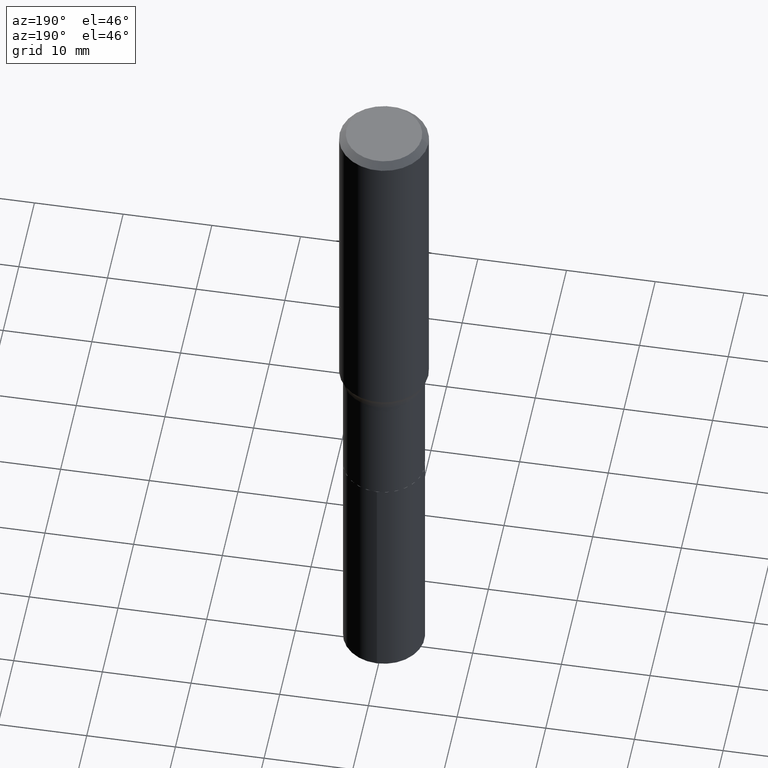
[diagram: clean part render]
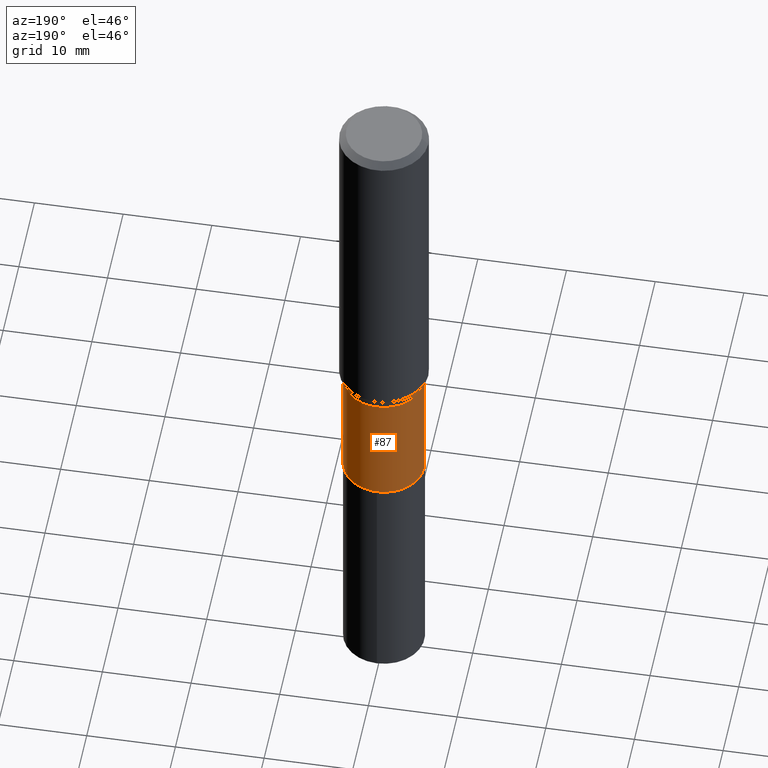
[diagram: same view with one face highlighted and labeled with its STEP entity id]
A machine part, auxiliary view. The second image highlights one B-rep face of the part: STEP entity #87.
In plain terms, the highlighted cylindrical surface (partial cylindrical patch) has radius 4.5644 mm, axis along (-0, 0, 1).
Its self-contained STEP definition (entity closure, byte-faithful):
#6 = AXIS2_PLACEMENT_3D ( 'NONE', #366, #77, #108 ) ;
#24 = VERTEX_POINT ( 'NONE', #201 ) ;
#33 = DIRECTION ( 'NONE',  ( -2.445468806185136597E-29, 3.491481338843145583E-15, 1.000000000000000000 ) ) ;
#36 = ORIENTED_EDGE ( 'NONE', *, *, #320, .F. ) ;
#42 = EDGE_CURVE ( 'NONE', #263, #128, #323, .T. ) ;
#55 = EDGE_CURVE ( 'NONE', #24, #263, #465, .T. ) ;
#64 = CARTESIAN_POINT ( 'NONE',  ( -0.1796999999999999431, 1.276845296160899630E-15, -8.839326357188062782E-30 ) ) ;
#77 = DIRECTION ( 'NONE',  ( -2.445468806185136597E-29, 3.491481338843145583E-15, 1.000000000000000000 ) ) ;
#87 = ADVANCED_FACE ( 'NONE', ( #329 ), #183, .T. ) ;
#96 = VERTEX_POINT ( 'NONE', #138 ) ;
#98 = VECTOR ( 'NONE', #131, 39.37007874015748143 ) ;
#102 = CARTESIAN_POINT ( 'NONE',  ( 0.000000000000000000, 0.000000000000000000, 0.000000000000000000 ) ) ;
#108 = DIRECTION ( 'NONE',  ( 1.000000000000000000, -6.982962677686264344E-15, 0.000000000000000000 ) ) ;
#128 = VERTEX_POINT ( 'NONE', #297 ) ;
#131 = DIRECTION ( 'NONE',  ( -2.445468806185136877E-29, 3.491481338843145188E-15, 1.000000000000000000 ) ) ;
#135 = DIRECTION ( 'NONE',  ( 1.000000000000000000, -6.982962677686269077E-15, 0.000000000000000000 ) ) ;
#138 = CARTESIAN_POINT ( 'NONE',  ( 0.1796999999999999431, -6.620197766580484580E-15, -1.536700000000000399 ) ) ;
#141 = DIRECTION ( 'NONE',  ( 1.000000000000000000, -6.982962677686265922E-15, 4.876176775795935232E-29 ) ) ;
#143 = LINE ( 'NONE', #467, #417 ) ;
#155 = CARTESIAN_POINT ( 'NONE',  ( -0.1796999999999999709, -5.019692150308829314E-15, -2.070100000000000051 ) ) ;
#174 = ORIENTED_EDGE ( 'NONE', *, *, #42, .T. ) ;
#183 = CYLINDRICAL_SURFACE ( 'NONE', #433, 0.1796999999999999431 ) ;
#201 = CARTESIAN_POINT ( 'NONE',  ( 0.1796999999999999709, -8.482553912719417951E-15, -2.070100000000000051 ) ) ;
#259 = AXIS2_PLACEMENT_3D ( 'NONE', #464, #289, #135 ) ;
#263 = VERTEX_POINT ( 'NONE', #155 ) ;
#277 = EDGE_LOOP ( 'NONE', ( #431, #174, #435, #36 ) ) ;
#289 = DIRECTION ( 'NONE',  ( -2.445468806185136597E-29, 3.491481338843145583E-15, 1.000000000000000000 ) ) ;
#297 = CARTESIAN_POINT ( 'NONE',  ( -0.1796999999999999431, -5.019692150308830103E-15, -1.536700000000000399 ) ) ;
#320 = EDGE_CURVE ( 'NONE', #24, #96, #143, .T. ) ;
#323 = LINE ( 'NONE', #64, #98 ) ;
#329 = FACE_OUTER_BOUND ( 'NONE', #277, .T. ) ;
#335 = CIRCLE ( 'NONE', #6, 0.1796999999999999431 ) ;
#354 = EDGE_CURVE ( 'NONE', #96, #128, #335, .T. ) ;
#366 = CARTESIAN_POINT ( 'NONE',  ( 3.757951914464700156E-29, -5.365359373400262850E-15, -1.536700000000000399 ) ) ;
#397 = DIRECTION ( 'NONE',  ( -2.445468806185136877E-29, 3.491481338843145188E-15, 1.000000000000000000 ) ) ;
#417 = VECTOR ( 'NONE', #397, 39.37007874015748143 ) ;
#431 = ORIENTED_EDGE ( 'NONE', *, *, #55, .T. ) ;
#433 = AXIS2_PLACEMENT_3D ( 'NONE', #102, #33, #141 ) ;
#435 = ORIENTED_EDGE ( 'NONE', *, *, #354, .F. ) ;
#464 = CARTESIAN_POINT ( 'NONE',  ( 5.062364975683851674E-29, -7.227715519539197010E-15, -2.070100000000000051 ) ) ;
#465 = CIRCLE ( 'NONE', #259, 0.1796999999999999709 ) ;
#467 = CARTESIAN_POINT ( 'NONE',  ( 0.1796999999999999431, -1.254838393180221533E-15, 8.762489666105292842E-30 ) ) ;